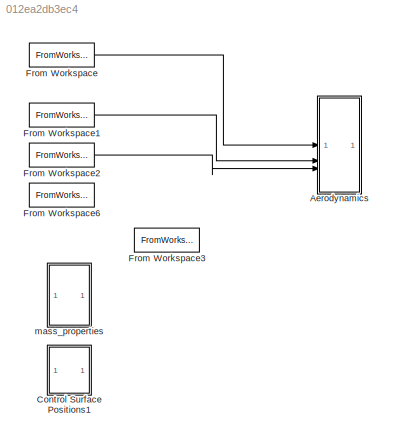
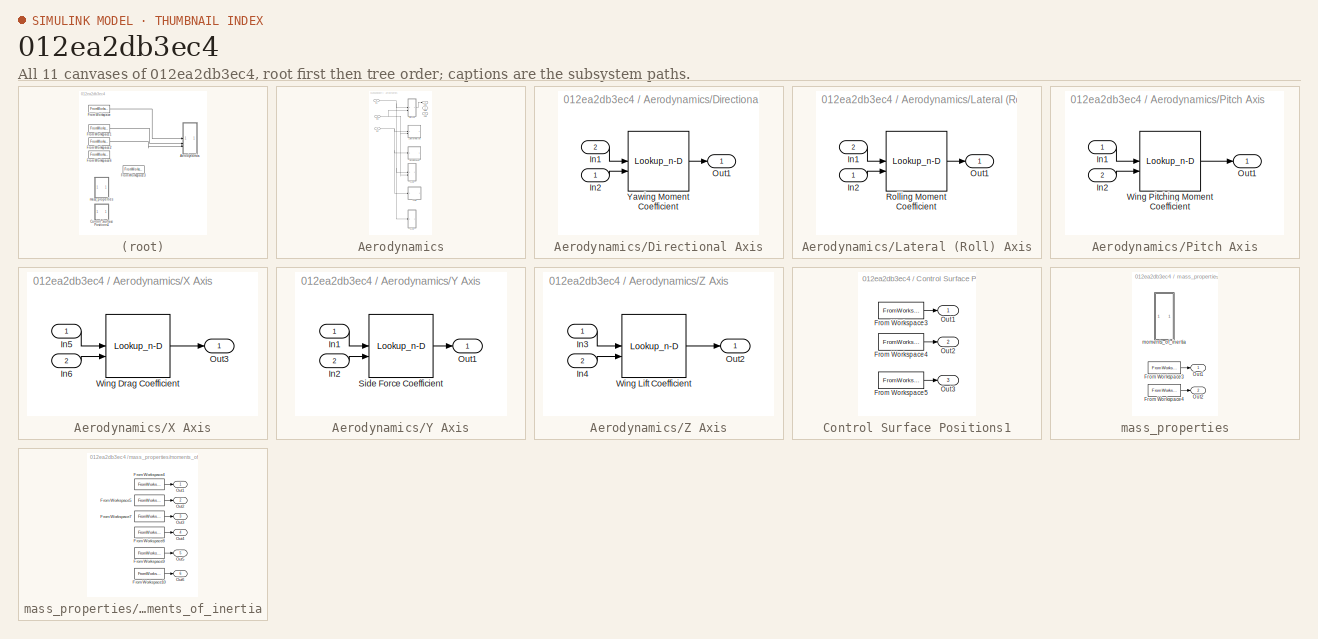
[diagram: thumbnail index - all 11 canvases of the model, root first then tree order]
MODEL slx_012ea2db3ec4
KIND model
CONFIG AbsTol = auto
CONFIG EnableMultiTasking = off
CONFIG FixedStep = auto
CONFIG MaxStep = auto
CONFIG MinStep = auto
CONFIG RelTol = 1e-3
CONFIG SampleTimeConstraint = Unconstrained
CONFIG SolverName = VariableStepAuto
CONFIG StartTime = 0.0
CONFIG StopTime = 10.0
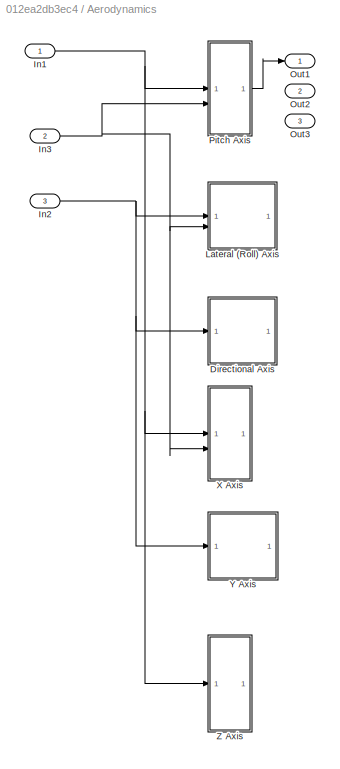
BLOCK [SubSystem] Aerodynamics
BLOCK [SubSystem] Aerodynamics/Directional Axis
BLOCK [Inport] Aerodynamics/Directional Axis/In1
  Port = 2
BLOCK [Inport] Aerodynamics/Directional Axis/In2
BLOCK [Outport] Aerodynamics/Directional Axis/Out1
BLOCK [Lookup_n-D] Aerodynamics/Directional Axis/Yawing Moment Coefficient
  BreakpointsForDimension1 = [1:3]
  BreakpointsForDimension2 = [1:3]
  InputPortMap = u0,u1
  InternalRulePriority = Speed
  RndMeth = Simplest
BLOCK [Inport] Aerodynamics/In1
BLOCK [Inport] Aerodynamics/In2
  Port = 3
BLOCK [Inport] Aerodynamics/In3
  Port = 2
BLOCK [SubSystem] Aerodynamics/Lateral (Roll) Axis
BLOCK [Inport] Aerodynamics/Lateral (Roll) Axis/In1
  Port = 2
BLOCK [Inport] Aerodynamics/Lateral (Roll) Axis/In2
BLOCK [Outport] Aerodynamics/Lateral (Roll) Axis/Out1
BLOCK [Lookup_n-D] Aerodynamics/Lateral (Roll) Axis/Rolling Moment Coefficient
  BreakpointsForDimension1 = [1:3]
  BreakpointsForDimension2 = [1:3]
  InputPortMap = u0,u1
  InternalRulePriority = Speed
  RndMeth = Simplest
BLOCK [Outport] Aerodynamics/Out1
BLOCK [Outport] Aerodynamics/Out2
  Port = 2
BLOCK [Outport] Aerodynamics/Out3
  Port = 3
BLOCK [SubSystem] Aerodynamics/Pitch Axis
BLOCK [Inport] Aerodynamics/Pitch Axis/In1
BLOCK [Inport] Aerodynamics/Pitch Axis/In2
  Port = 2
BLOCK [Outport] Aerodynamics/Pitch Axis/Out1
BLOCK [Lookup_n-D] Aerodynamics/Pitch Axis/Wing Pitching Moment Coefficient
  BreakpointsForDimension1 = [1:3]
  BreakpointsForDimension2 = [1:3]
  InputPortMap = u0,u1
  InternalRulePriority = Speed
  RndMeth = Simplest
BLOCK [SubSystem] Aerodynamics/X Axis
BLOCK [Inport] Aerodynamics/X Axis/In5
BLOCK [Inport] Aerodynamics/X Axis/In6
  Port = 2
BLOCK [Outport] Aerodynamics/X Axis/Out3
BLOCK [Lookup_n-D] Aerodynamics/X Axis/Wing Drag Coefficient
  BreakpointsForDimension1 = [1:3]
  BreakpointsForDimension2 = [1:3]
  InputPortMap = u0,u1
  InternalRulePriority = Speed
  RndMeth = Simplest
BLOCK [SubSystem] Aerodynamics/Y Axis
  PortSchema = {"entries":[{"content":{"sides":[{"content":{"connectorIds":["In1"]},"type":"ConnectorPlacement.EquallySpacedRectSide","uuid":"786a4368-23e1-4568-81be-c2b52f8c5df0"},{"content":{"connectorIds":["Out1"],"side":"RIGHT"},"type":"ConnectorPlacement.EquallySpacedRectSide","uuid":"e805c0ed-aaa8-4562-bd6b-82b12d681019"},{"content":{"connectorIds":["In2"],"side":"TOP"},"type":"ConnectorPlacement.EquallySp...<+245ch>
BLOCK [Inport] Aerodynamics/Y Axis/In1
BLOCK [Inport] Aerodynamics/Y Axis/In2
  Port = 2
BLOCK [Outport] Aerodynamics/Y Axis/Out1
BLOCK [Lookup_n-D] Aerodynamics/Y Axis/Side Force Coefficient
  BreakpointsForDimension1 = [1:3]
  BreakpointsForDimension2 = [1:3]
  InputPortMap = u0,u1
  InternalRulePriority = Speed
  RndMeth = Simplest
BLOCK [SubSystem] Aerodynamics/Z Axis
BLOCK [Inport] Aerodynamics/Z Axis/In3
BLOCK [Inport] Aerodynamics/Z Axis/In4
  Port = 2
BLOCK [Outport] Aerodynamics/Z Axis/Out2
BLOCK [Lookup_n-D] Aerodynamics/Z Axis/Wing Lift Coefficient
  BreakpointsForDimension1 = [1:3]
  BreakpointsForDimension2 = [1:3]
  InputPortMap = u0,u1
  InternalRulePriority = Speed
  RndMeth = Simplest
BLOCK [SubSystem] Control Surface Positions1
BLOCK [FromWorkspace] Control Surface Positions1/From Workspace3
  VariableName = aileron_def_deg
BLOCK [FromWorkspace] Control Surface Positions1/From Workspace4
  VariableName = elevator_def_deg
BLOCK [FromWorkspace] Control Surface Positions1/From Workspace5
  VariableName = rudder_def_deg
BLOCK [Outport] Control Surface Positions1/Out1
BLOCK [Outport] Control Surface Positions1/Out2
  Port = 2
BLOCK [Outport] Control Surface Positions1/Out3
  Port = 3
BLOCK [FromWorkspace] From Workspace
  VariableName = alfa_deg
BLOCK [FromWorkspace] From Workspace1
  VariableName = mach
BLOCK [FromWorkspace] From Workspace2
  VariableName = beta_deg
BLOCK [FromWorkspace] From Workspace3
  VariableName = pres_alt_ft
BLOCK [FromWorkspace] From Workspace6
  VariableName = ve_knots
BLOCK [SubSystem] mass_properties
BLOCK [FromWorkspace] mass_properties/From Workspace3
  VariableName = wate_lbf
BLOCK [FromWorkspace] mass_properties/From Workspace4
  VariableName = cg_mac
BLOCK [Outport] mass_properties/Out1
BLOCK [Outport] mass_properties/Out2
  Port = 2
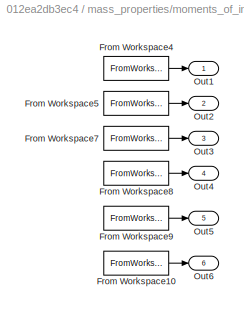
BLOCK [SubSystem] mass_properties/moments_of_inertia
BLOCK [FromWorkspace] mass_properties/moments_of_inertia/From Workspace10
  VariableName = I_yz_ft4
BLOCK [FromWorkspace] mass_properties/moments_of_inertia/From Workspace4
  VariableName = I_xx_ft4
BLOCK [FromWorkspace] mass_properties/moments_of_inertia/From Workspace5
  VariableName = I_yy_ft4
BLOCK [FromWorkspace] mass_properties/moments_of_inertia/From Workspace7
  VariableName = I_zz_ft4
BLOCK [FromWorkspace] mass_properties/moments_of_inertia/From Workspace8
  VariableName = I_xz_ft4
BLOCK [FromWorkspace] mass_properties/moments_of_inertia/From Workspace9
  VariableName = I_xy_ft4
BLOCK [Outport] mass_properties/moments_of_inertia/Out1
BLOCK [Outport] mass_properties/moments_of_inertia/Out2
  Port = 2
BLOCK [Outport] mass_properties/moments_of_inertia/Out3
  Port = 3
BLOCK [Outport] mass_properties/moments_of_inertia/Out4
  Port = 4
BLOCK [Outport] mass_properties/moments_of_inertia/Out5
  Port = 5
BLOCK [Outport] mass_properties/moments_of_inertia/Out6
  Port = 6
LINE Aerodynamics/Directional Axis/In1:1 -> Aerodynamics/Directional Axis/Yawing Moment Coefficient:1
LINE Aerodynamics/Directional Axis/In2:1 -> Aerodynamics/Directional Axis/Yawing Moment Coefficient:2
LINE Aerodynamics/Directional Axis/Yawing Moment Coefficient:1 -> Aerodynamics/Directional Axis/Out1:1
NET Aerodynamics/In1:1 -> Aerodynamics/Pitch Axis:1, Aerodynamics/X Axis:1, Aerodynamics/Z Axis:1
NET Aerodynamics/In2:1 -> Aerodynamics/Directional Axis:1, Aerodynamics/Lateral (Roll) Axis:1, Aerodynamics/Y Axis:1
NET Aerodynamics/In3:1 -> Aerodynamics/Lateral (Roll) Axis:2, Aerodynamics/Pitch Axis:2, Aerodynamics/X Axis:2
LINE Aerodynamics/Lateral (Roll) Axis/In1:1 -> Aerodynamics/Lateral (Roll) Axis/Rolling Moment Coefficient:1
LINE Aerodynamics/Lateral (Roll) Axis/In2:1 -> Aerodynamics/Lateral (Roll) Axis/Rolling Moment Coefficient:2
LINE Aerodynamics/Lateral (Roll) Axis/Rolling Moment Coefficient:1 -> Aerodynamics/Lateral (Roll) Axis/Out1:1
LINE Aerodynamics/Pitch Axis/In1:1 -> Aerodynamics/Pitch Axis/Wing Pitching Moment Coefficient:1
LINE Aerodynamics/Pitch Axis/In2:1 -> Aerodynamics/Pitch Axis/Wing Pitching Moment Coefficient:2
LINE Aerodynamics/Pitch Axis/Wing Pitching Moment Coefficient:1 -> Aerodynamics/Pitch Axis/Out1:1
LINE Aerodynamics/Pitch Axis:1 -> Aerodynamics/Out1:1
LINE Aerodynamics/X Axis/In5:1 -> Aerodynamics/X Axis/Wing Drag Coefficient:1
LINE Aerodynamics/X Axis/In6:1 -> Aerodynamics/X Axis/Wing Drag Coefficient:2
LINE Aerodynamics/X Axis/Wing Drag Coefficient:1 -> Aerodynamics/X Axis/Out3:1
LINE Aerodynamics/Y Axis/In1:1 -> Aerodynamics/Y Axis/Side Force Coefficient:1
LINE Aerodynamics/Y Axis/In2:1 -> Aerodynamics/Y Axis/Side Force Coefficient:2
LINE Aerodynamics/Y Axis/Side Force Coefficient:1 -> Aerodynamics/Y Axis/Out1:1
LINE Aerodynamics/Z Axis/In3:1 -> Aerodynamics/Z Axis/Wing Lift Coefficient:1
LINE Aerodynamics/Z Axis/In4:1 -> Aerodynamics/Z Axis/Wing Lift Coefficient:2
LINE Aerodynamics/Z Axis/Wing Lift Coefficient:1 -> Aerodynamics/Z Axis/Out2:1
LINE Control Surface Positions1/From Workspace3:1 -> Control Surface Positions1/Out1:1
LINE Control Surface Positions1/From Workspace4:1 -> Control Surface Positions1/Out2:1
LINE Control Surface Positions1/From Workspace5:1 -> Control Surface Positions1/Out3:1
LINE From Workspace1:1 -> Aerodynamics:2
LINE From Workspace2:1 -> Aerodynamics:3
LINE From Workspace:1 -> Aerodynamics:1
LINE mass_properties/From Workspace3:1 -> mass_properties/Out1:1
LINE mass_properties/From Workspace4:1 -> mass_properties/Out2:1
LINE mass_properties/moments_of_inertia/From Workspace10:1 -> mass_properties/moments_of_inertia/Out6:1
LINE mass_properties/moments_of_inertia/From Workspace4:1 -> mass_properties/moments_of_inertia/Out1:1
LINE mass_properties/moments_of_inertia/From Workspace5:1 -> mass_properties/moments_of_inertia/Out2:1
LINE mass_properties/moments_of_inertia/From Workspace7:1 -> mass_properties/moments_of_inertia/Out3:1
LINE mass_properties/moments_of_inertia/From Workspace8:1 -> mass_properties/moments_of_inertia/Out4:1
LINE mass_properties/moments_of_inertia/From Workspace9:1 -> mass_properties/moments_of_inertia/Out5:1
note: NET lines group one-source signal fan-out (src -> all destinations, sorted); 1:1 wires keep LINE
